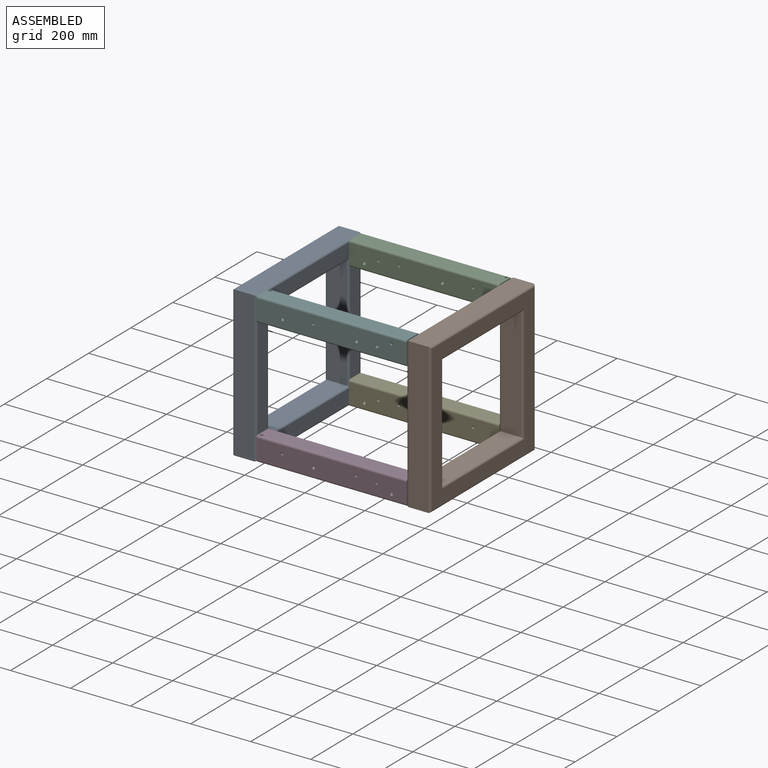
[diagram: assembled view]
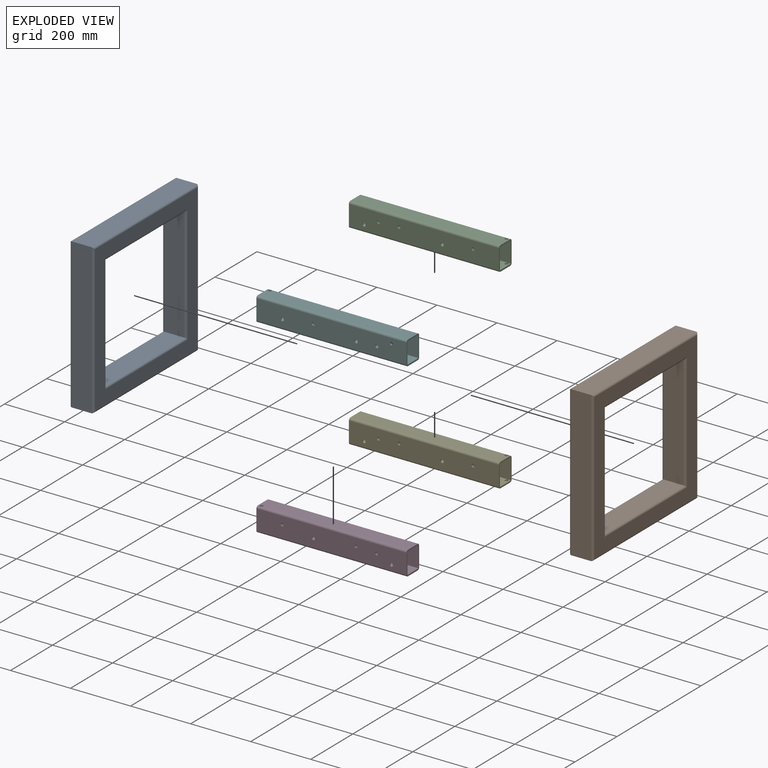
[diagram: exploded view]
GUIDED TOUR — MATED ASSEMBLY WITH SUBASSEMBLIES (Onshape document 570762d4449b630760134de0, AutoMate assembly 570762d4449b630760134de0_2d2cd445d036063de1d0b33d_e6518e5409fb736097e91c08_default)

This assembly has 12 component occurrences arranged in 6 top-level units: 4 individual components plus 2 subassemblies (S0, S1). The tour has two levels: first the top level, where each subassembly is treated as one rigid unit; then each subassembly is toured internally in its own section (nesting deeper than one subassembly level is flattened into its subassembly's section).

Components are labeled P0..P11 across the whole record; subassembly units are labeled S0..S1. A mate is a constraint between two units; its type names the relative motion it leaves free:
  FASTENED — locks the two components together rigidly (no relative motion),
  PLANAR — leaves sliding in the plane through the listed point (normal = the listed direction) and rotation about that normal free.
Axis/direction vectors are unit vectors and 'through' points are millimeter coordinates, both in the assembly's world frame.

TOP-LEVEL MATES (between units; each subassembly's internal mates are listed in its own section)
  1. PLANAR "Planar 14": S1 <-> P5, direction (0.000, 1.000, 0.000) through (397.62, -212.50, 270.20) mm
  2. PLANAR "Planar 6": P10 <-> S0, direction (0.000, 0.000, 1.000) through (108.39, -682.56, 520.20) mm
  3. PLANAR "Planar 3": P6 <-> S0, direction (0.000, 0.000, -1.000) through (108.39, -682.44, 20.20) mm
  4. PLANAR "Planar 10": P5 <-> S0, direction (-1.000, 0.000, 0.000) through (-142.38, -242.50, 480.20) mm
  5. PLANAR "Planar 13": S1 <-> P5, direction (-1.000, 0.000, 0.000) through (357.62, -462.50, 491.00) mm
  6. PLANAR "Planar 2": P6 <-> S0, direction (0.000, -1.000, 0.000) through (107.07, -712.50, 60.21) mm
  7. PLANAR "Planar 5": P10 <-> S0, direction (0.000, -1.000, 0.000) through (-142.38, -712.50, 513.20) mm
  8. PLANAR "Planar 4": P10 <-> S0, direction (-1.000, 0.000, 0.000) through (-142.38, -659.50, 440.20) mm
  9. PLANAR "Planar 12": P5 <-> S0, direction (0.000, 0.000, 1.000) through (106.86, -242.56, 520.20) mm
  10. PLANAR "Planar 1": P6 <-> S0, direction (-1.000, 0.000, 0.000) through (-142.38, -705.50, 20.20) mm
  11. PLANAR "Planar 11": P5 <-> S0, direction (0.000, 1.000, 0.000) through (108.18, -212.50, 480.21) mm
  12. PLANAR "Planar 9": P7 <-> S0, direction (0.000, 1.000, 0.000) through (108.18, -212.50, 60.21) mm
  13. PLANAR "Planar 8": P7 <-> S0, direction (0.000, 0.000, -1.000) through (106.86, -242.56, 20.20) mm
  14. PLANAR "Planar 15": S1 <-> P5, direction (0.000, 0.000, 1.000) through (397.62, -462.50, 520.20) mm
  15. PLANAR "Planar 7": P7 <-> S0, direction (-1.000, 0.000, 0.000) through (-142.38, -242.50, 20.20) mm

TOP-LEVEL ASSEMBLY ORDER
  1. P10 — the base component [order verified]
  2. P5 [order verified]
  3. P7 [order verified]
  4. P6 [order verified]
  5. S1 [order verified]
  6. S0 [order verified]
Order-tag legend:
  [order verified] — this step's position reverses a verified removal order: the component was checked to insert without passing through the ones already placed.

Of the 12 component occurrences, 12 carry the full construction recipe — the FeatureScript program that regenerates the part's solid from scratch; the rest are supplied as boundary geometry only. Each toured unit is shown spotlighted twice — assembled, then exploded with a leader line back to its socket (green = recipe-attached component, orange = geometry-only, blue = subassembly unit; the rest desaturated gray).
NOTE — this tour is split across 2 documents so each fits a 32k-token context. This is document 1: the component sections continue in the remaining 1 document, each repeating the header above.
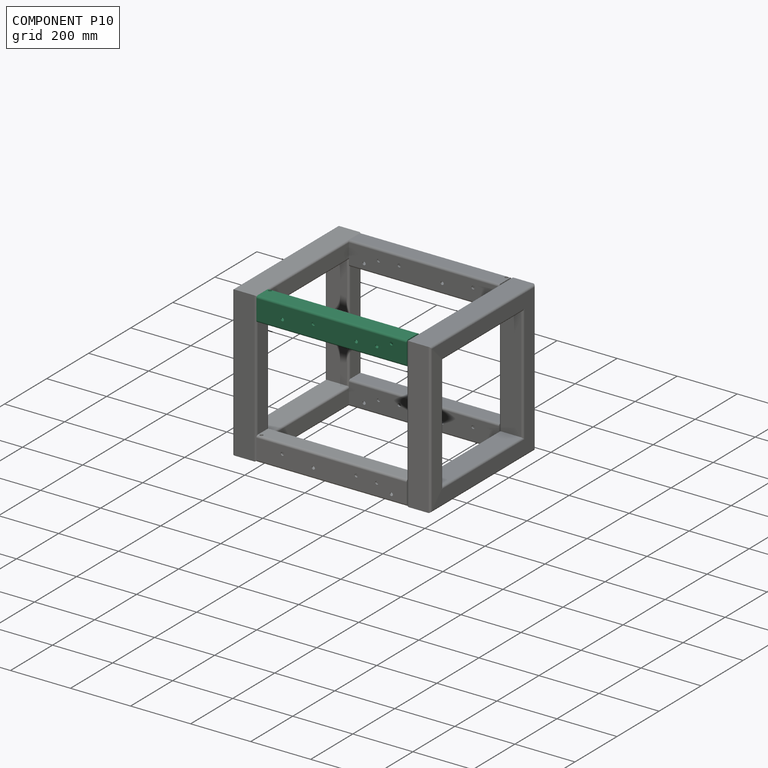
[diagram: component P10 — assembled]
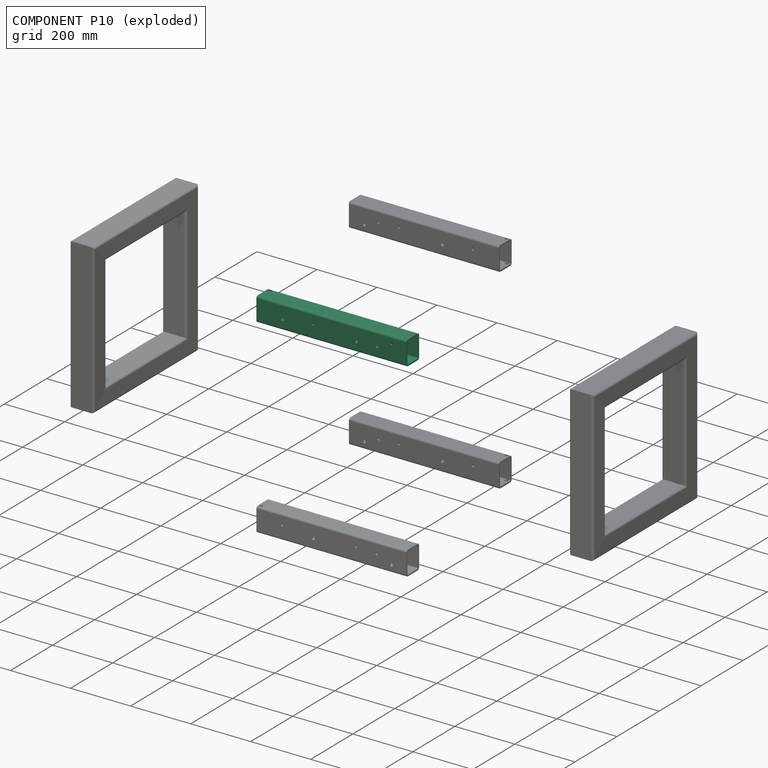
[diagram: component P10 — exploded]
COMPONENT P10 — same part as P5 (CADFS 00210873); its construction recipe is shown at P5.
Held by: PLANAR mate "Planar 6" to P0; PLANAR mate "Planar 5" to P0; PLANAR mate "Planar 4" to P0.
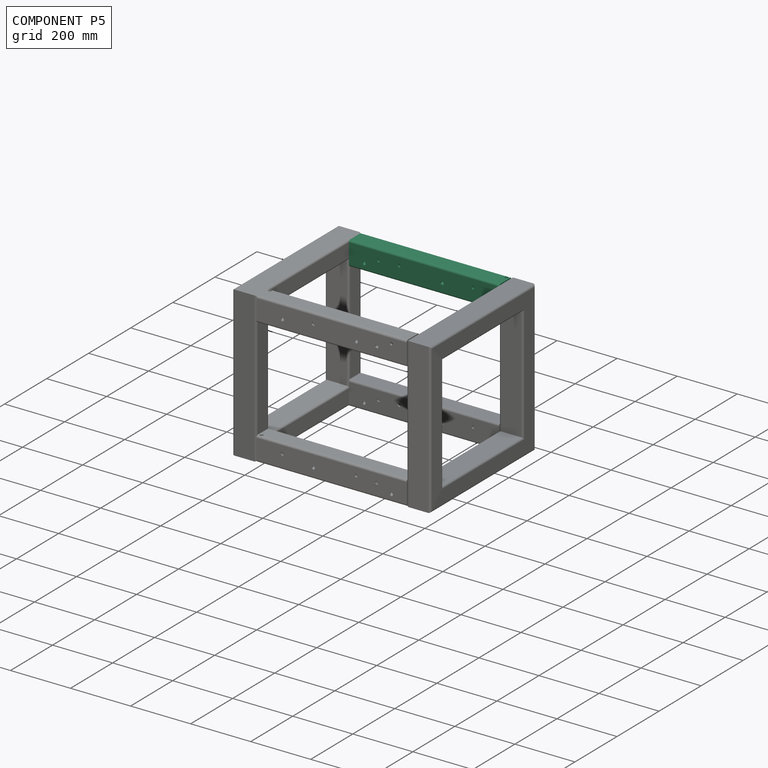
[diagram: component P5 — assembled]
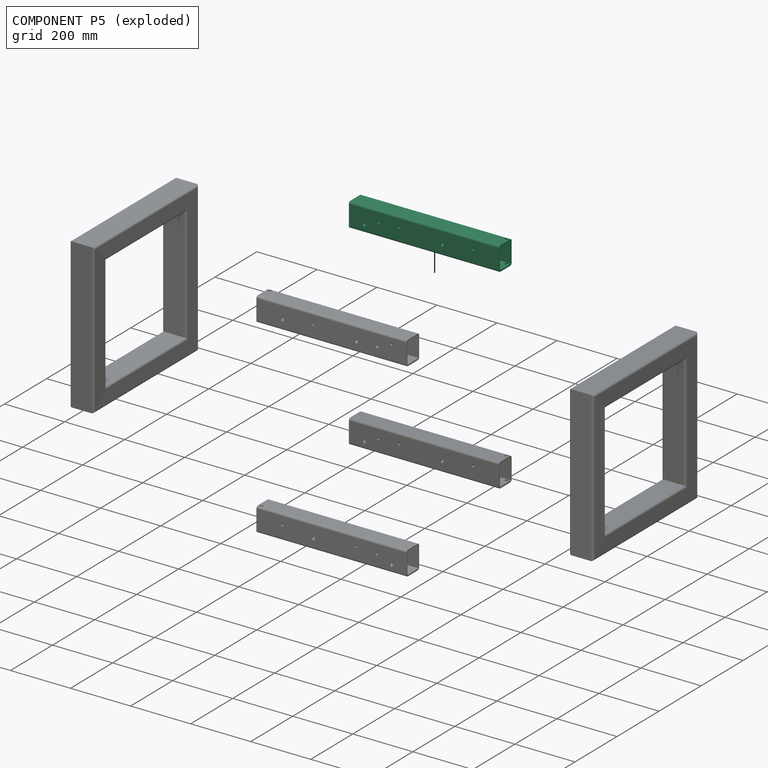
[diagram: component P5 — exploded]
COMPONENT P5 — recipe-attached (CADFS 00210873, mesh-verified: the recipe's output STEP matches this component's geometry to below the mesh-comparison resolution (tessellation chordal tolerance ~0.765 mm)).
Held by: PLANAR mate "Planar 14" to P1; PLANAR mate "Planar 10" to P0; PLANAR mate "Planar 13" to P1; PLANAR mate "Planar 12" to P0; PLANAR mate "Planar 11" to P0; PLANAR mate "Planar 15" to P1.
Construction recipe (FeatureScript — the CAD program that rebuilds this solid; sketch coordinates are in the units given by the * unit suffixes, e.g. mm):

FeatureScript 1511;
import(path : "onshape/std/geometry.fs", version : "1511.0");
import(path : "onshape/std/common.fs", version : "1511.0");
const mm = millimeter;
const VERTEX = EntityType.VERTEX;
const EDGE = EntityType.EDGE;
const FACE = EntityType.FACE;
const BODY = EntityType.BODY;
function v(x, y){return vector(x, y);}
function OD(order){return orderDisambiguation(order);}
function OSD(set){return originalSetDisambiguation(set);}
function TD(topology){return topologyDisambiguation(topology);}
function TDD(query){return trueDependencyDisambiguation(query);}
function sQuery(a, b, c) {return sketchEntityQuery(a, b, c);}

annotation { "Feature Type Name" : "Feature", "Feature Type Description" : "" }
export const myFeature = defineFeature(function(context is Context, id is Id, definition is map)
    precondition{}
    {
        {
            var Q0;
            Q0=qCreatedBy(makeId("Front.planeOp"),FACE);
            var sketch = newSketch(context, id + "F0", { "sketchPlane" : qUnion([Q0])});
            skLineSegment(sketch, "E0.bottom", {"start": v(33, 30) * mm, "end": v(-33, 30) * mm});
            skLineSegment(sketch, "E0.top", {"start": v(33, -30) * mm, "end": v(-33, -30) * mm});
            skLineSegment(sketch, "E0.left", {"start": v(40, 23) * mm, "end": v(40, -23) * mm});
            skLineSegment(sketch, "E0.right", {"start": v(-40, 23) * mm, "end": v(-40, -23) * mm});
            skPoint(sketch, "E0.middle", {"position": v(0, 0) * mm});
            skLineSegment(sketch, "E1.bottom", {"start": v(33, 25) * mm, "end": v(-33, 25) * mm});
            skLineSegment(sketch, "E1.top", {"start": v(33, -25) * mm, "end": v(-33, -25) * mm});
            skLineSegment(sketch, "E1.left", {"start": v(35, 23) * mm, "end": v(35, -23) * mm});
            skLineSegment(sketch, "E1.right", {"start": v(-35, 23) * mm, "end": v(-35, -23) * mm});
            skPoint(sketch, "E2.visualSharp", {"position": v(-40, 30) * mm});
            skArc(sketch, "E2.filletArc", {"start": v(-33, 30) * mm, "mid": v(-37.95, 27.95) * mm, "end": v(-40, 23) * mm});
            skPoint(sketch, "E3.visualSharp", {"position": v(-40, -30) * mm});
            skArc(sketch, "E3.filletArc", {"start": v(-40, -23) * mm, "mid": v(-37.95, -27.95) * mm, "end": v(-33, -30) * mm});
            skPoint(sketch, "E4.visualSharp", {"position": v(40, -30) * mm});
            skArc(sketch, "E4.filletArc", {"start": v(33, -30) * mm, "mid": v(37.95, -27.95) * mm, "end": v(40, -23) * mm});
            skPoint(sketch, "E5.visualSharp", {"position": v(40, 30) * mm});
            skArc(sketch, "E5.filletArc", {"start": v(40, 23) * mm, "mid": v(37.95, 27.95) * mm, "end": v(33, 30) * mm});
            skPoint(sketch, "E6.visualSharp", {"position": v(-35, -25) * mm});
            skArc(sketch, "E6.filletArc", {"start": v(-35, -23) * mm, "mid": v(-34.41, -24.41) * mm, "end": v(-33, -25) * mm});
            skPoint(sketch, "E7.visualSharp", {"position": v(35, 25) * mm});
            skArc(sketch, "E7.filletArc", {"start": v(35, 23) * mm, "mid": v(34.41, 24.41) * mm, "end": v(33, 25) * mm});
            skPoint(sketch, "E8.visualSharp", {"position": v(35, -25) * mm});
            skArc(sketch, "E8.filletArc", {"start": v(33, -25) * mm, "mid": v(34.41, -24.41) * mm, "end": v(35, -23) * mm});
            skPoint(sketch, "E9.visualSharp", {"position": v(-35, 25) * mm});
            skArc(sketch, "E9.filletArc", {"start": v(-33, 25) * mm, "mid": v(-34.41, 24.41) * mm, "end": v(-35, 23) * mm});
            skSolve(sketch);
        }
        {
            var Q0;
            Q0=makeQuery(id+"F0.imprint","IMPRINT",FACE,{"disambiguationData":[TD([[makeQuery(id+"F0.imprint","IMPRINT",EDGE,{"derivedFrom":sQuery(id+"F0.wireOp",EDGE,"E0.bottom")}),1.0]])]});
            extrude(context, id + "F1", {"entities" : qUnion([Q0]), "endBound" : BoundingType.SYMMETRIC, "depth" : 500 * mm});
        }
        {
            var Q0;
            Q0=makeQuery(id+"F1.opExtrude","SWEPT_FACE",FACE,{"disambiguationData":[OSD([sQuery(id+"F0.wireOp",EDGE,"E0.right")])]});
            var sketch = newSketch(context, id + "F2", { "sketchPlane" : qUnion([Q0])});
            skLineSegment(sketch, "E10.0", {"start": v(-190, -30) * mm, "end": v(-250, -30) * mm});
            skPoint(sketch, "E11.0", {"position": v(-250, 30) * mm});
            skLineSegment(sketch, "E12", {"start": v(-250, 30) * mm, "end": v(-250, -30) * mm});
            skLineSegment(sketch, "E13", {"start": v(-250, 30) * mm, "end": v(-190, -30) * mm});
            skPoint(sketch, "E14.orphan", {"position": v(250, -30) * mm});
            skLineSegment(sketch, "E15.MirrorCS", {"start": v(250, 30) * mm, "end": v(250, -30) * mm});
            skLineSegment(sketch, "E16.MirrorCS", {"start": v(250, 30) * mm, "end": v(190, -30) * mm});
            skLineSegment(sketch, "E17.MirrorCS", {"start": v(190, -30) * mm, "end": v(250, -30) * mm});
            skSolve(sketch);
        }
        {
            var Q0;
            Q0=makeQuery(id+"F1.opExtrude","SWEPT_FACE",FACE,{"disambiguationData":[OSD([sQuery(id+"F0.wireOp",EDGE,"E0.bottom")])]});
            var sketch = newSketch(context, id + "F3", { "sketchPlane" : qUnion([Q0])});
            skPoint(sketch, "E18", {"position": v(-16.69, 199.33) * mm});
            skPoint(sketch, "E19", {"position": v(4.77, 151.06) * mm});
            skPoint(sketch, "E20", {"position": v(8.34, 82.53) * mm});
            skPoint(sketch, "E21", {"position": v(-6.56, -60.49) * mm});
            skPoint(sketch, "E22", {"position": v(7.75, -163.58) * mm});
            skSolve(sketch);
        }
        {
            var Q0;
            Q0=sQuery(id+"F3.wireOp",VERTEX,"E22");
            var Q1;
            Q1=sQuery(id+"F3.wireOp",VERTEX,"E21");
            var Q2;
            Q2=sQuery(id+"F3.wireOp",VERTEX,"E20");
            var Q3;
            Q3=sQuery(id+"F3.wireOp",VERTEX,"E19");
            var Q4;
            Q4=sQuery(id+"F3.wireOp",VERTEX,"E18");
            var Q5;
            Q5=makeQuery(id+"F1.opExtrude","SWEPT_BODY",BODY,{"disambiguationData":[OSD([sQuery(id+"F0.wireOp",EDGE,"E0.bottom"),sQuery(id+"F0.wireOp",EDGE,"E0.top"),sQuery(id+"F0.wireOp",EDGE,"E0.left"),sQuery(id+"F0.wireOp",EDGE,"E0.right"),sQuery(id+"F0.wireOp",EDGE,"E1.bottom"),sQuery(id+"F0.wireOp",EDGE,"E1.top"),sQuery(id+"F0.wireOp",EDGE,"E1.left"),sQuery(id+"F0.wireOp",EDGE,"E1.right"),sQuery(id+"F0.wireOp",EDGE,"E2.filletArc"),sQuery(id+"F0.wireOp",EDGE,"E3.filletArc"),sQuery(id+"F0.wireOp",EDGE,"E4.filletArc"),sQuery(id+"F0.wireOp",EDGE,"E5.filletArc"),sQuery(id+"F0.wireOp",EDGE,"E6.filletArc"),sQuery(id+"F0.wireOp",EDGE,"E7.filletArc"),sQuery(id+"F0.wireOp",EDGE,"E8.filletArc"),sQuery(id+"F0.wireOp",EDGE,"E9.filletArc")])]});
            hole(context, id + "F4", {"style" : HoleStyle.SIMPLE, "endStyle" : HoleEndStyle.THROUGH, "standardTappedOrClearance" : lookupTablePath({ "standard" : "ISO", "engagement" : "75%", "pitch" : "1.5 mm", "size" : "M12", "type" : "Tapped" }), "standardBlindInLast" : lookupTablePath({ "standard" : "ISO", "engagement" : "75%", "pitch" : "1.5 mm", "size" : "M12", "type" : "Tapped" }), "holeDiameter" : 10.5 * mm, "locations" : qUnion([Q0, Q1, Q2, Q3, Q4]), "scope" : qUnion([Q5]), "isTappedThrough" : true, "majorDiameter" : 12 * mm, "showTappedDepth" : true});
        }
        {
            var Q0;
            Q0=makeQuery(id+"F1.opExtrude","SWEPT_FACE",FACE,{"disambiguationData":[OSD([sQuery(id+"F0.wireOp",EDGE,"E0.left")])]});
            var sketch = newSketch(context, id + "F5", { "sketchPlane" : qUnion([Q0])});
            skPoint(sketch, "E23", {"position": v(-240, -20) * mm});
            skSolve(sketch);
        }
        {
            var Q0;
            Q0=sQuery(id+"F5.wireOp",VERTEX,"E23");
            var Q1;
            Q1=makeQuery(id+"F1.opExtrude","SWEPT_BODY",BODY,{"disambiguationData":[OSD([sQuery(id+"F0.wireOp",EDGE,"E0.bottom"),sQuery(id+"F0.wireOp",EDGE,"E0.top"),sQuery(id+"F0.wireOp",EDGE,"E0.left"),sQuery(id+"F0.wireOp",EDGE,"E0.right"),sQuery(id+"F0.wireOp",EDGE,"E1.bottom"),sQuery(id+"F0.wireOp",EDGE,"E1.top"),sQuery(id+"F0.wireOp",EDGE,"E1.left"),sQuery(id+"F0.wireOp",EDGE,"E1.right"),sQuery(id+"F0.wireOp",EDGE,"E2.filletArc"),sQuery(id+"F0.wireOp",EDGE,"E3.filletArc"),sQuery(id+"F0.wireOp",EDGE,"E4.filletArc"),sQuery(id+"F0.wireOp",EDGE,"E5.filletArc"),sQuery(id+"F0.wireOp",EDGE,"E6.filletArc"),sQuery(id+"F0.wireOp",EDGE,"E7.filletArc"),sQuery(id+"F0.wireOp",EDGE,"E8.filletArc"),sQuery(id+"F0.wireOp",EDGE,"E9.filletArc")])]});
            hole(context, id + "F6", {"style" : HoleStyle.SIMPLE, "endStyle" : HoleEndStyle.THROUGH, "standardTappedOrClearance" : lookupTablePath({ "standard" : "ISO", "engagement" : "75%", "pitch" : "1.5 mm", "size" : "M12", "type" : "Tapped" }), "standardBlindInLast" : lookupTablePath({ "standard" : "ISO", "engagement" : "75%", "pitch" : "1.5 mm", "size" : "M12", "type" : "Tapped" }), "holeDiameter" : 10.5 * mm, "locations" : qUnion([Q0]), "scope" : qUnion([Q1]), "isTappedThrough" : true, "majorDiameter" : 12 * mm, "showTappedDepth" : true});
        }
    });
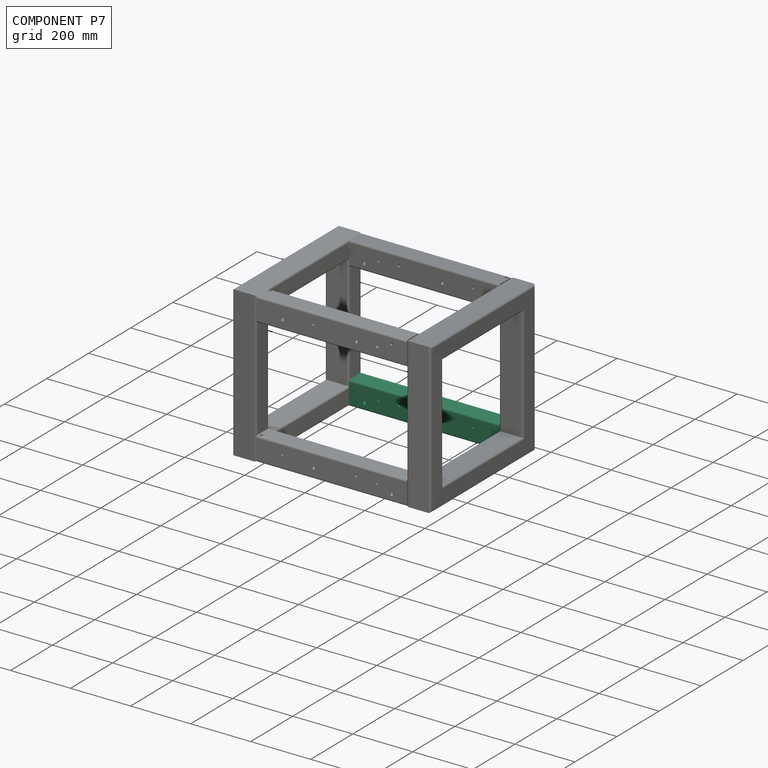
[diagram: component P7 — assembled]
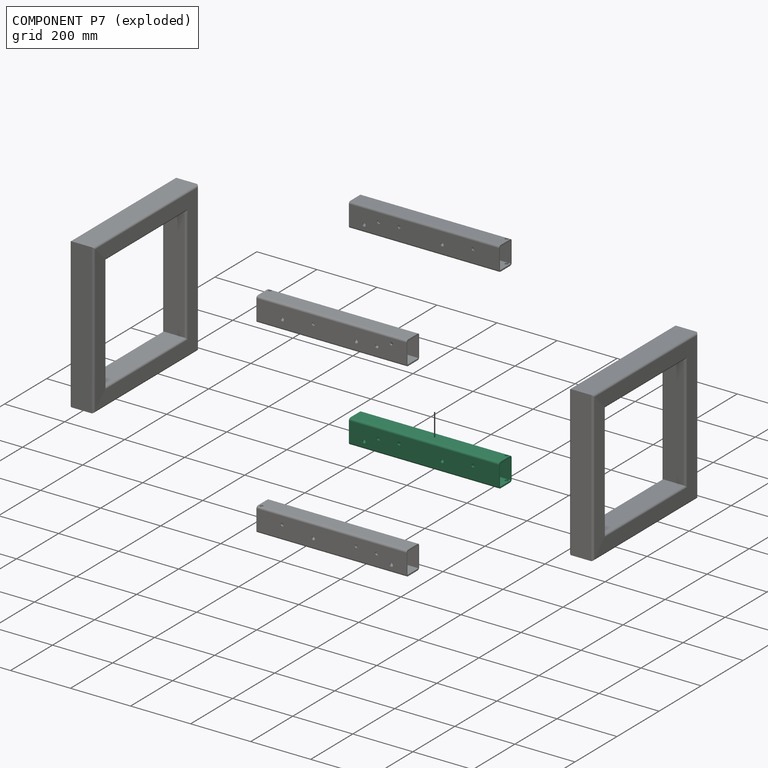
[diagram: component P7 — exploded]
COMPONENT P7 — same part as P5 (CADFS 00210873); its construction recipe is shown at P5.
Held by: PLANAR mate "Planar 9" to P0; PLANAR mate "Planar 8" to P0; PLANAR mate "Planar 7" to P0.
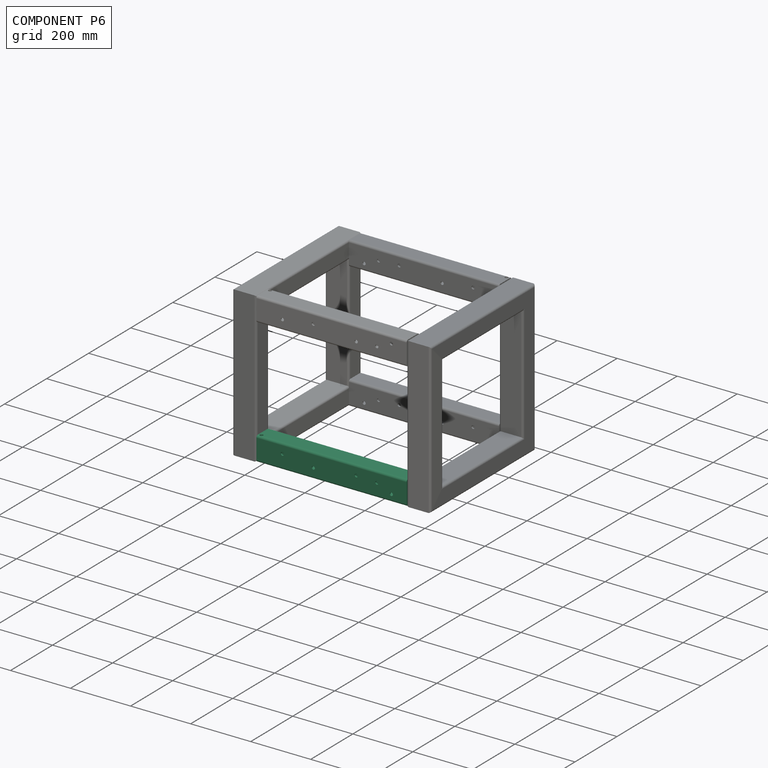
[diagram: component P6 — assembled]
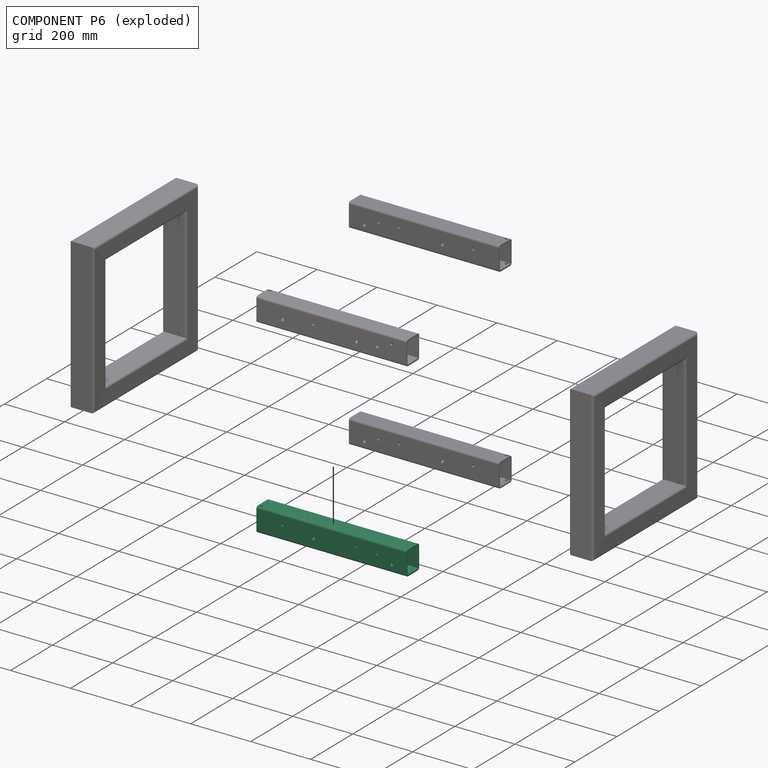
[diagram: component P6 — exploded]
COMPONENT P6 — same part as P5 (CADFS 00210873); its construction recipe is shown at P5.
Held by: PLANAR mate "Planar 3" to P0; PLANAR mate "Planar 2" to P0; PLANAR mate "Planar 1" to P0.
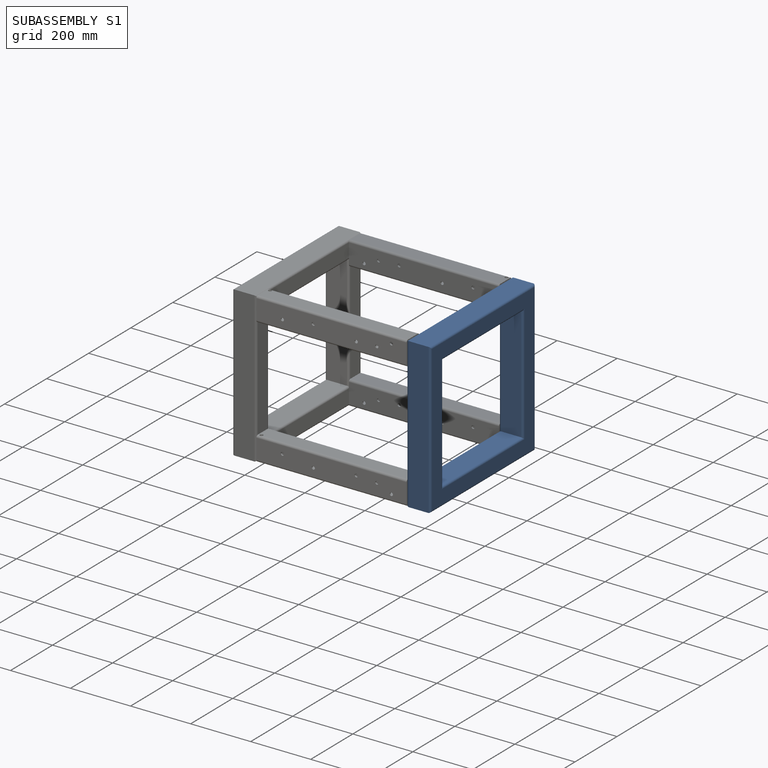
[diagram: subassembly S1 — assembled]
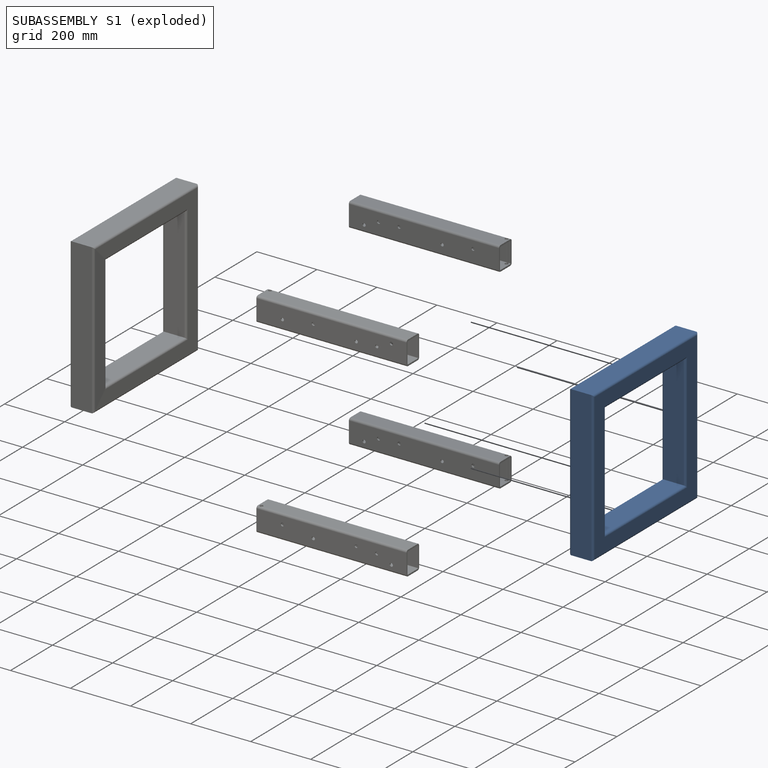
[diagram: subassembly S1 — exploded]
SUBASSEMBLY S1 — 4 components (P1, P3, P8, P9), of which 4 recipe-attached; toured below.
Held by: PLANAR mate "Planar 14" to P5; PLANAR mate "Planar 13" to P5; PLANAR mate "Planar 15" to P5.
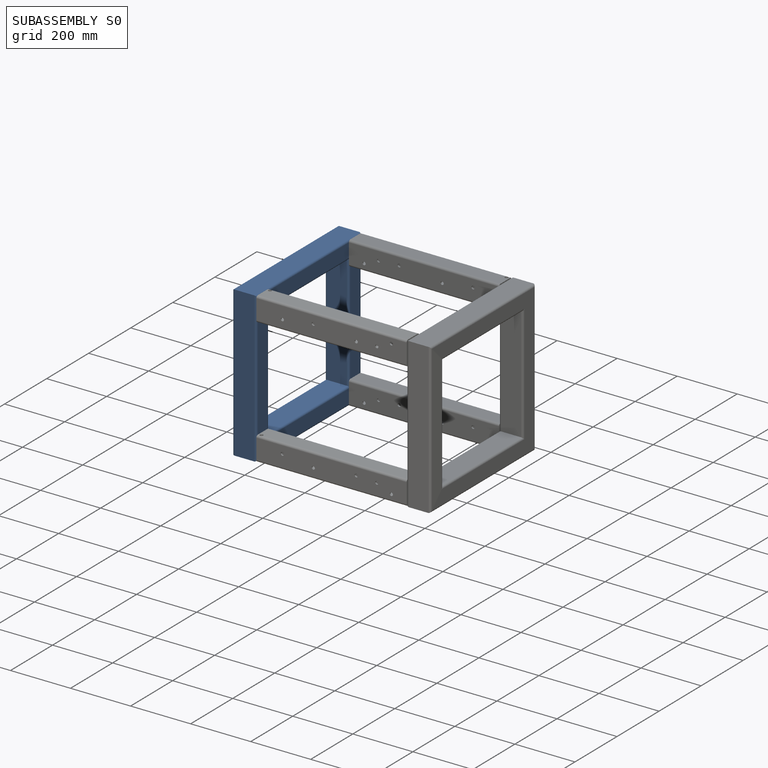
[diagram: subassembly S0 — assembled]
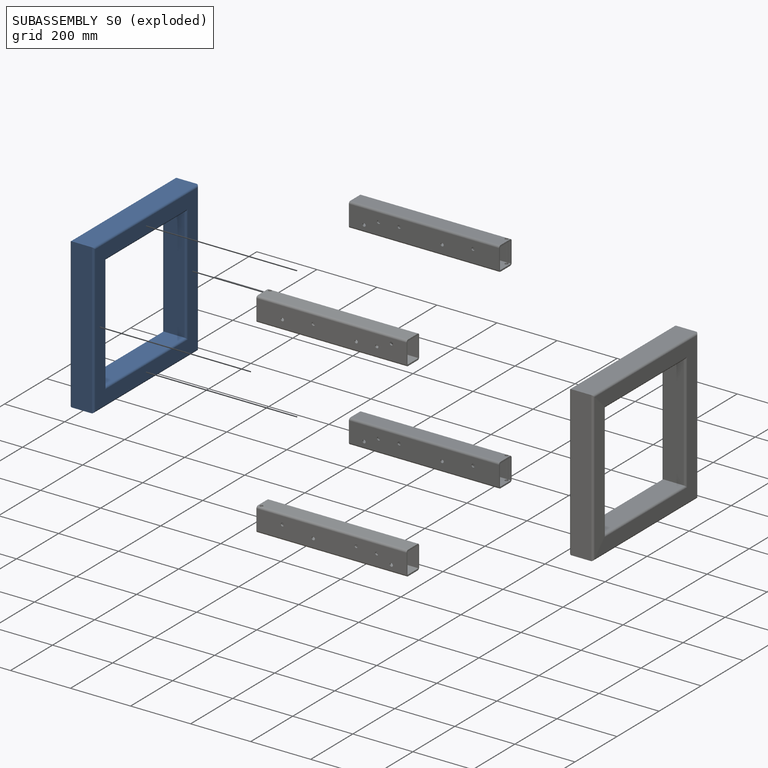
[diagram: subassembly S0 — exploded]
SUBASSEMBLY S0 — 4 components (P0, P2, P4, P11), of which 4 recipe-attached; toured below.
Held by: PLANAR mate "Planar 6" to P10; PLANAR mate "Planar 3" to P6; PLANAR mate "Planar 10" to P5; PLANAR mate "Planar 2" to P6; PLANAR mate "Planar 5" to P10; PLANAR mate "Planar 4" to P10; PLANAR mate "Planar 12" to P5; PLANAR mate "Planar 1" to P6; PLANAR mate "Planar 11" to P5; PLANAR mate "Planar 9" to P7; PLANAR mate "Planar 8" to P7; PLANAR mate "Planar 7" to P7.
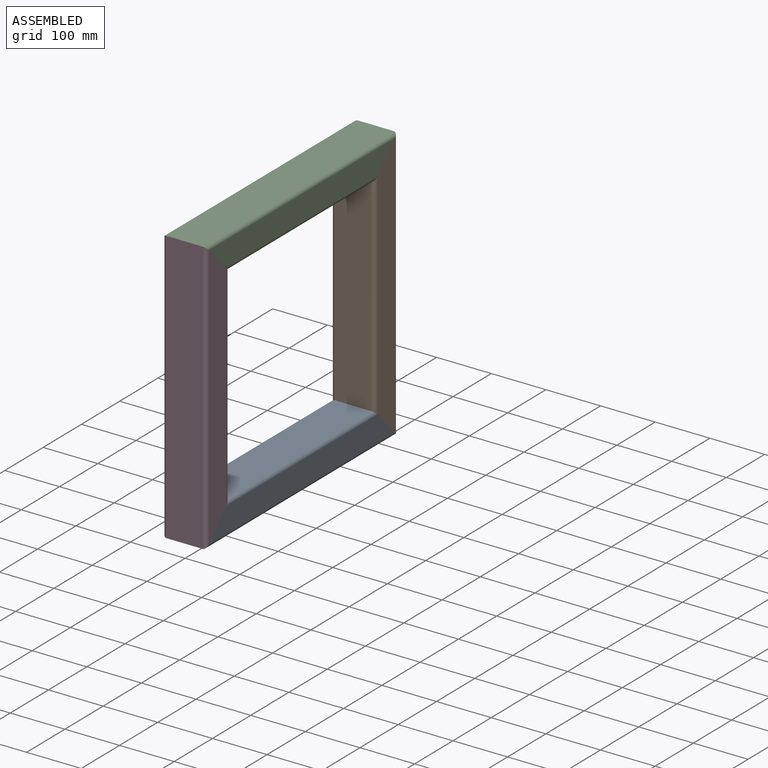
[diagram: subassembly S0 — assembled view]
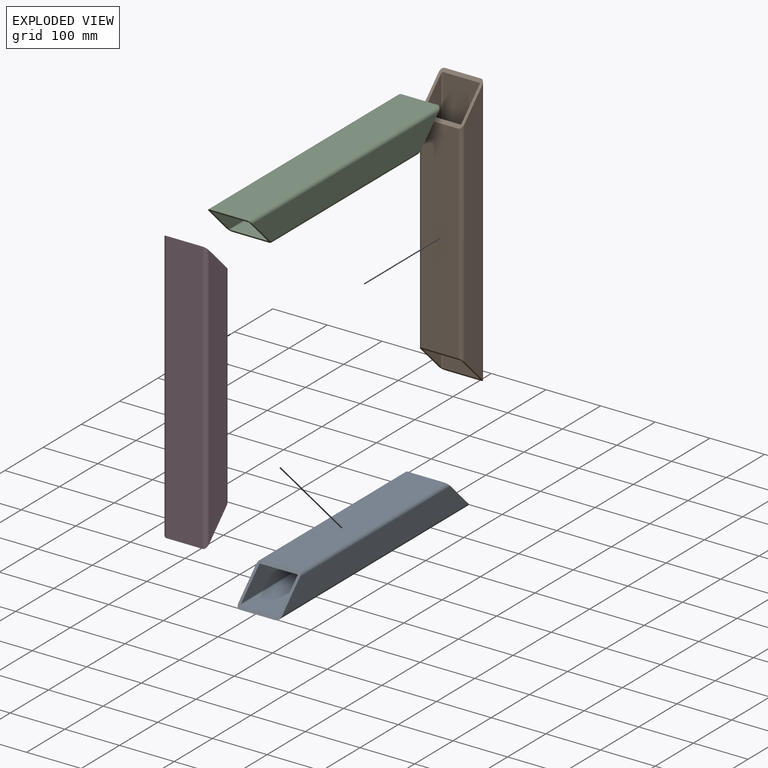
[diagram: subassembly S0 — exploded view]
SUBASSEMBLY S0 TOUR — 4 components, shown here in isolation at its own camera.

INTERNAL MATES
  1. PLANAR "Planar 2": P11 <-> P0, direction (-1.000, 0.000, 0.000) through (-222.38, -682.50, 50.20) mm
  2. PLANAR "Planar 6": P2 <-> P4, direction (-1.000, 0.000, 0.000) through (-222.38, -241.70, 270.20) mm
  3. FASTENED "Fastened 2": P4 <-> P11, direction (-1.000, 0.000, 0.000) through (-182.38, -712.50, 520.20) mm
  4. FASTENED "Fastened 1": P11 <-> P0, direction (-1.000, 0.000, 0.000) through (-182.38, -712.50, 20.20) mm
  5. PLANAR "Planar 5": P2 <-> P4, direction (0.000, -0.707, 0.707) through (-182.38, -242.50, 490.20) mm
  6. FASTENED "Fastened 3": P2 <-> P0, direction (1.000, 0.000, 0.000) through (-182.38, -212.50, 20.20) mm
  7. PLANAR "Planar 3": P4 <-> P11, direction (0.000, -0.707, -0.707) through (-182.38, -682.50, 490.20) mm
  8. PLANAR "Planar 1": P0 <-> P11, direction (0.000, -0.707, 0.707) through (-182.38, -682.50, 50.20) mm
  9. PLANAR "Planar 4": P11 <-> P4, direction (1.000, 0.000, 0.000) through (-142.38, -682.50, 490.20) mm
  10. FASTENED "Fastened 3": P2 <-> P0, direction (1.000, 0.000, 0.000) through (-182.38, -212.50, 20.20) mm
  11. PLANAR "Planar 1": P0 <-> P11, direction (0.000, -0.707, 0.707) through (-182.38, -682.50, 50.20) mm
  12. PLANAR "Planar 6": P2 <-> P4, direction (-1.000, 0.000, 0.000) through (-222.38, -241.70, 270.20) mm
  13. PLANAR "Planar 4": P11 <-> P4, direction (1.000, 0.000, 0.000) through (-142.38, -682.50, 490.20) mm
  14. PLANAR "Planar 3": P4 <-> P11, direction (0.000, -0.707, -0.707) through (-182.38, -682.50, 490.20) mm
  15. PLANAR "Planar 5": P2 <-> P4, direction (0.000, -0.707, 0.707) through (-182.38, -242.50, 490.20) mm
  16. PLANAR "Planar 2": P11 <-> P0, direction (-1.000, 0.000, 0.000) through (-222.38, -682.50, 50.20) mm
  17. FASTENED "Fastened 1": P11 <-> P0, direction (-1.000, 0.000, 0.000) through (-182.38, -712.50, 20.20) mm
  18. FASTENED "Fastened 2": P4 <-> P11, direction (-1.000, 0.000, 0.000) through (-182.38, -712.50, 520.20) mm

ASSEMBLY ORDER (within the subassembly)
  1. P11 — the base component [order verified]
  2. P4 [order verified]
  3. P0 [order verified]
  4. P2 [order verified]
(P2 verified with a relaxed clearance tolerance: the source model stores slight part interference there.)
Order-tag legend:
  [order verified] — this step's position reverses a verified removal order: the component was checked to insert without passing through the ones already placed.
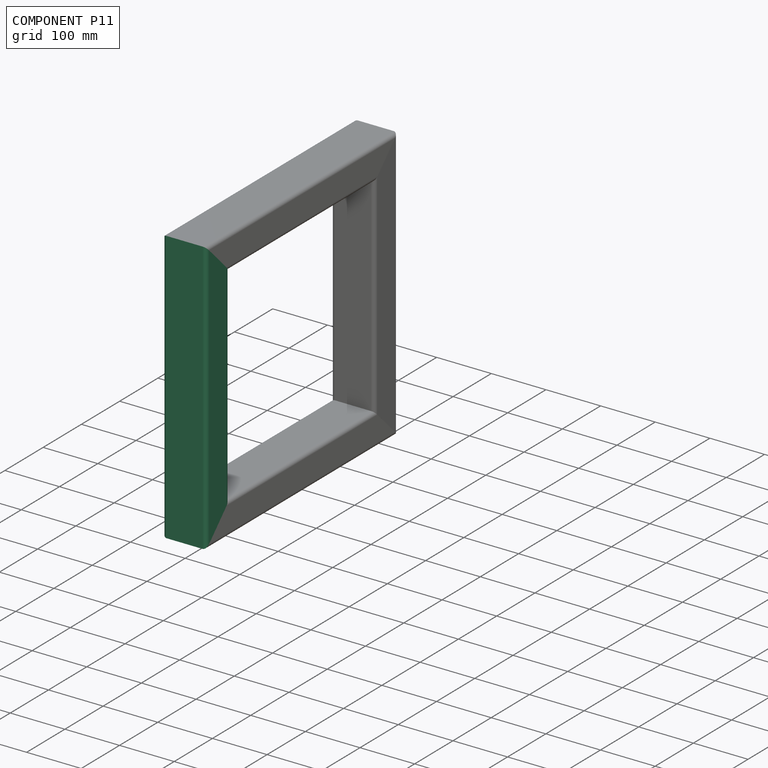
[diagram: component P11 — assembled]
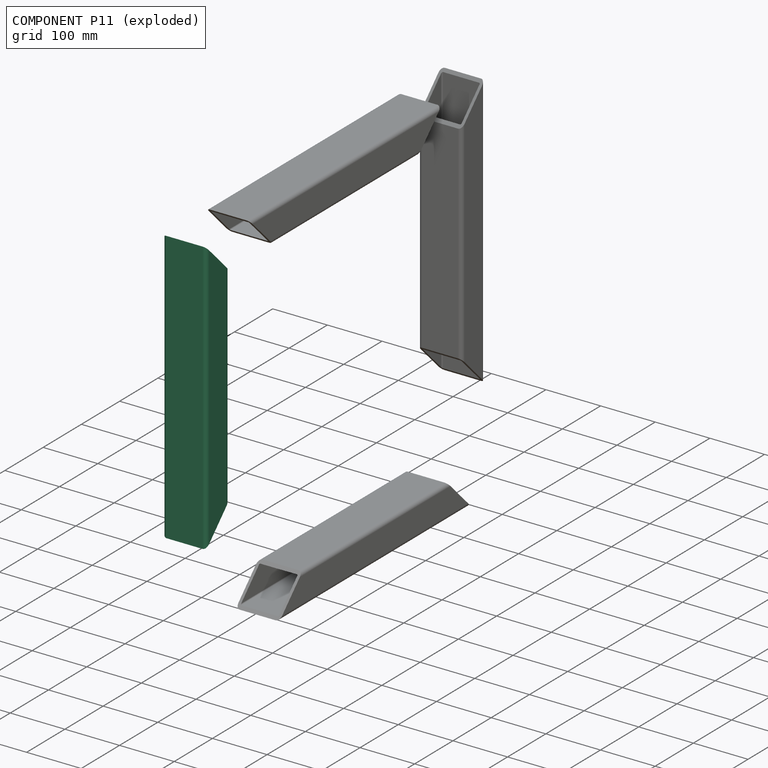
[diagram: component P11 — exploded]
COMPONENT P11 — same part as P0 (CADFS 00210872); its construction recipe is shown at P0.
Held by: PLANAR mate "Planar 2" to P0; FASTENED mate "Fastened 2" to P4; FASTENED mate "Fastened 1" to P0; PLANAR mate "Planar 3" to P4; PLANAR mate "Planar 1" to P0; PLANAR mate "Planar 4" to P4; PLANAR mate "Planar 1" to P0; PLANAR mate "Planar 4" to P4; PLANAR mate "Planar 3" to P4; PLANAR mate "Planar 2" to P0; FASTENED mate "Fastened 1" to P0; FASTENED mate "Fastened 2" to P4.
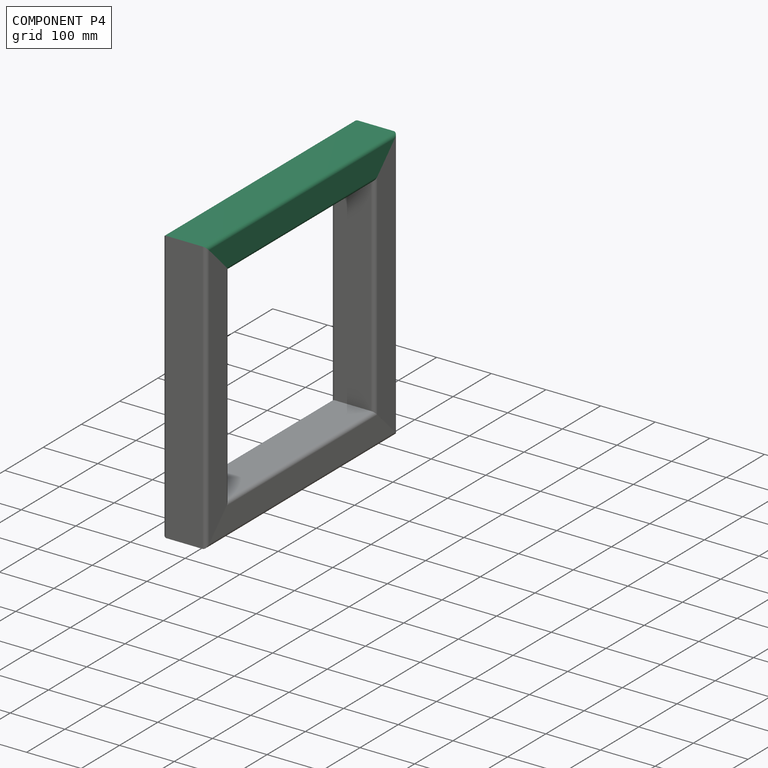
[diagram: component P4 — assembled]
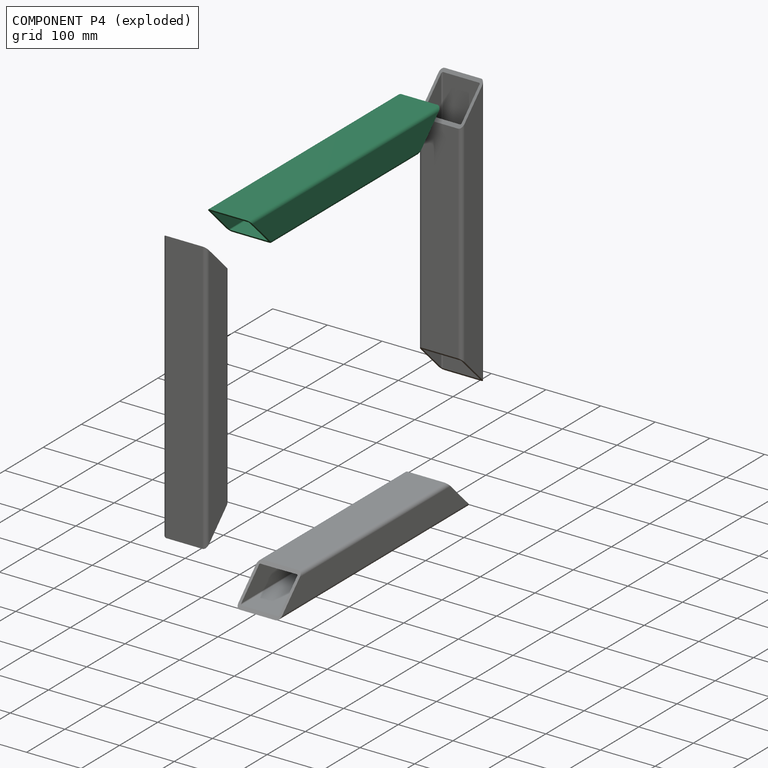
[diagram: component P4 — exploded]
COMPONENT P4 — same part as P0 (CADFS 00210872); its construction recipe is shown at P0.
Held by: PLANAR mate "Planar 6" to P2; FASTENED mate "Fastened 2" to P11; PLANAR mate "Planar 5" to P2; PLANAR mate "Planar 3" to P11; PLANAR mate "Planar 4" to P11; PLANAR mate "Planar 6" to P2; PLANAR mate "Planar 4" to P11; PLANAR mate "Planar 3" to P11; PLANAR mate "Planar 5" to P2; FASTENED mate "Fastened 2" to P11.
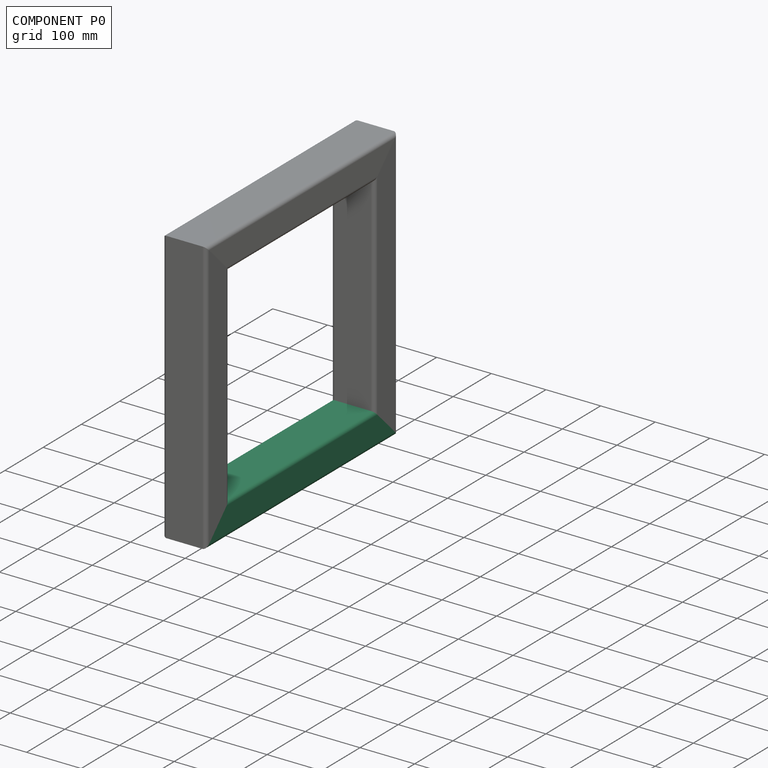
[diagram: component P0 — assembled]
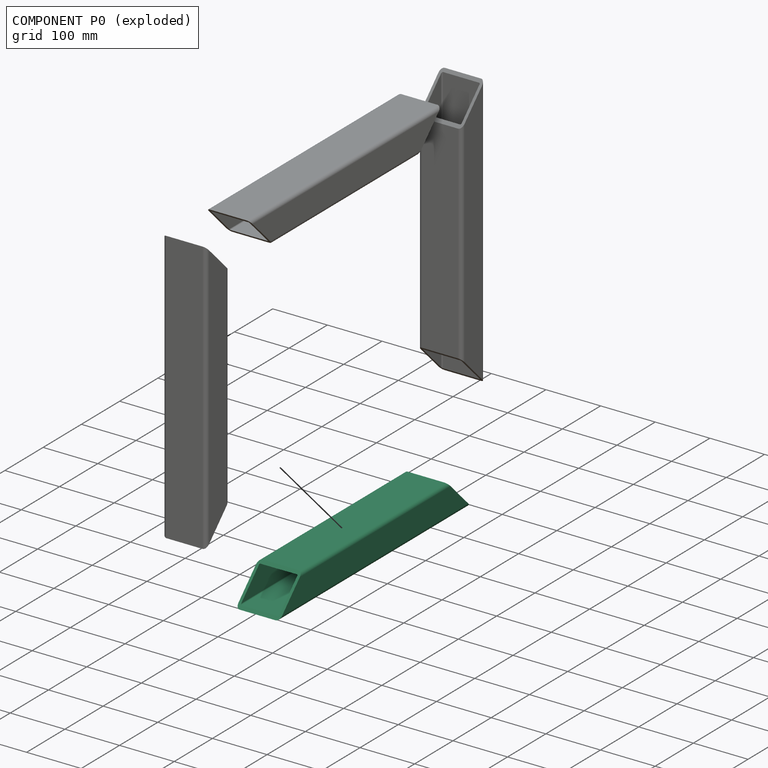
[diagram: component P0 — exploded]
COMPONENT P0 — recipe-attached (CADFS 00210872, mesh-verified: the recipe's output STEP matches this component's geometry to below the mesh-comparison resolution (tessellation chordal tolerance ~0.765 mm)).
Held by: PLANAR mate "Planar 2" to P11; FASTENED mate "Fastened 1" to P11; FASTENED mate "Fastened 3" to P2; PLANAR mate "Planar 1" to P11; FASTENED mate "Fastened 3" to P2; PLANAR mate "Planar 1" to P11; PLANAR mate "Planar 2" to P11; FASTENED mate "Fastened 1" to P11.
Construction recipe (FeatureScript — the CAD program that rebuilds this solid; sketch coordinates are in the units given by the * unit suffixes, e.g. mm):

FeatureScript 1511;
import(path : "onshape/std/geometry.fs", version : "1511.0");
import(path : "onshape/std/common.fs", version : "1511.0");
const mm = millimeter;
const VERTEX = EntityType.VERTEX;
const EDGE = EntityType.EDGE;
const FACE = EntityType.FACE;
const BODY = EntityType.BODY;
function v(x, y){return vector(x, y);}
function OD(order){return orderDisambiguation(order);}
function OSD(set){return originalSetDisambiguation(set);}
function TD(topology){return topologyDisambiguation(topology);}
function TDD(query){return trueDependencyDisambiguation(query);}
function sQuery(a, b, c) {return sketchEntityQuery(a, b, c);}

annotation { "Feature Type Name" : "Feature", "Feature Type Description" : "" }
export const myFeature = defineFeature(function(context is Context, id is Id, definition is map)
    precondition{}
    {
        {
            var Q0;
            Q0=qCreatedBy(makeId("Front.planeOp"),FACE);
            var sketch = newSketch(context, id + "F0", { "sketchPlane" : qUnion([Q0])});
            skLineSegment(sketch, "E0.bottom", {"start": v(33, 30) * mm, "end": v(-33, 30) * mm});
            skLineSegment(sketch, "E0.top", {"start": v(33, -30) * mm, "end": v(-33, -30) * mm});
            skLineSegment(sketch, "E0.left", {"start": v(40, 23) * mm, "end": v(40, -23) * mm});
            skLineSegment(sketch, "E0.right", {"start": v(-40, 23) * mm, "end": v(-40, -23) * mm});
            skPoint(sketch, "E0.middle", {"position": v(0, 0) * mm});
            skLineSegment(sketch, "E1.bottom", {"start": v(33, 25) * mm, "end": v(-33, 25) * mm});
            skLineSegment(sketch, "E1.top", {"start": v(33, -25) * mm, "end": v(-33, -25) * mm});
            skLineSegment(sketch, "E1.left", {"start": v(35, 23) * mm, "end": v(35, -23) * mm});
            skLineSegment(sketch, "E1.right", {"start": v(-35, 23) * mm, "end": v(-35, -23) * mm});
            skPoint(sketch, "E2.visualSharp", {"position": v(-40, 30) * mm});
            skArc(sketch, "E2.filletArc", {"start": v(-33, 30) * mm, "mid": v(-37.95, 27.95) * mm, "end": v(-40, 23) * mm});
            skPoint(sketch, "E3.visualSharp", {"position": v(-40, -30) * mm});
            skArc(sketch, "E3.filletArc", {"start": v(-40, -23) * mm, "mid": v(-37.95, -27.95) * mm, "end": v(-33, -30) * mm});
            skPoint(sketch, "E4.visualSharp", {"position": v(40, -30) * mm});
            skArc(sketch, "E4.filletArc", {"start": v(33, -30) * mm, "mid": v(37.95, -27.95) * mm, "end": v(40, -23) * mm});
            skPoint(sketch, "E5.visualSharp", {"position": v(40, 30) * mm});
            skArc(sketch, "E5.filletArc", {"start": v(40, 23) * mm, "mid": v(37.95, 27.95) * mm, "end": v(33, 30) * mm});
            skPoint(sketch, "E6.visualSharp", {"position": v(-35, -25) * mm});
            skArc(sketch, "E6.filletArc", {"start": v(-35, -23) * mm, "mid": v(-34.41, -24.41) * mm, "end": v(-33, -25) * mm});
            skPoint(sketch, "E7.visualSharp", {"position": v(35, 25) * mm});
            skArc(sketch, "E7.filletArc", {"start": v(35, 23) * mm, "mid": v(34.41, 24.41) * mm, "end": v(33, 25) * mm});
            skPoint(sketch, "E8.visualSharp", {"position": v(35, -25) * mm});
            skArc(sketch, "E8.filletArc", {"start": v(33, -25) * mm, "mid": v(34.41, -24.41) * mm, "end": v(35, -23) * mm});
            skPoint(sketch, "E9.visualSharp", {"position": v(-35, 25) * mm});
            skArc(sketch, "E9.filletArc", {"start": v(-33, 25) * mm, "mid": v(-34.41, 24.41) * mm, "end": v(-35, 23) * mm});
            skSolve(sketch);
        }
        {
            var Q0;
            Q0=makeQuery(id+"F0.imprint","IMPRINT",FACE,{"disambiguationData":[TD([[makeQuery(id+"F0.imprint","IMPRINT",EDGE,{"derivedFrom":sQuery(id+"F0.wireOp",EDGE,"E0.bottom")}),1.0]])]});
            extrude(context, id + "F1", {"entities" : qUnion([Q0]), "endBound" : BoundingType.SYMMETRIC, "depth" : 500 * mm});
        }
        {
            var Q0;
            Q0=makeQuery(id+"F1.opExtrude","SWEPT_FACE",FACE,{"disambiguationData":[OSD([sQuery(id+"F0.wireOp",EDGE,"E0.right")])]});
            var sketch = newSketch(context, id + "F2", { "sketchPlane" : qUnion([Q0])});
            skLineSegment(sketch, "E10.0", {"start": v(-190, -30) * mm, "end": v(-250, -30) * mm});
            skPoint(sketch, "E11.0", {"position": v(-250, 30) * mm});
            skLineSegment(sketch, "E12", {"start": v(-250, 30) * mm, "end": v(-250, -30) * mm});
            skLineSegment(sketch, "E13", {"start": v(-250, 30) * mm, "end": v(-190, -30) * mm});
            skPoint(sketch, "E14.orphan", {"position": v(250, -30) * mm});
            skLineSegment(sketch, "E15.MirrorCS", {"start": v(250, 30) * mm, "end": v(250, -30) * mm});
            skLineSegment(sketch, "E16.MirrorCS", {"start": v(250, 30) * mm, "end": v(190, -30) * mm});
            skLineSegment(sketch, "E17.MirrorCS", {"start": v(190, -30) * mm, "end": v(250, -30) * mm});
            skSolve(sketch);
        }
        {
            var Q0;
            {var subQ0=sQuery(id+"F2.wireOp",EDGE,"E10.0");Q0=makeQuery(id+"F2.imprint","IMPRINT",FACE,{"disambiguationData":[TD([[makeQuery(id+"F2.imprint","IMPRINT",EDGE,{"derivedFrom":subQ0}),-1.0]])]});}
            var Q1;
            {var subQ0=sQuery(id+"F2.wireOp",EDGE,"E12");var subQ1=sQuery(id+"F0.wireOp",EDGE,"E0.right");var subQ2=makeQuery(id+"F1.opExtrude","SWEPT_EDGE",EDGE,{"disambiguationData":[OSD([subQ1,sQuery(id+"F0.wireOp",EDGE,"E2.filletArc")])]});var subQ3=makeQuery(id+"F2.imprint","INTERSECT",VERTEX,{"derivedFrom":[subQ2,subQ0]});Q1=makeQuery(id+"F2.imprint","IMPRINT",FACE,{"disambiguationData":[TD([[makeQuery(id+"F2.imprint","IMPRINT",EDGE,{"disambiguationData":[TD([[subQ3,-1.0]])],"derivedFrom":subQ0}),1.0]])]});}
            var Q2;
            {var subQ0=sQuery(id+"F2.wireOp",EDGE,"E12");var subQ3=sQuery(id+"F2.wireOp",EDGE,"E13");var subQ4=makeQuery(id+"F2.imprint","INTERSECT",VERTEX,{"derivedFrom":[subQ0,subQ3]});Q2=makeQuery(id+"F2.imprint","IMPRINT",FACE,{"disambiguationData":[TD([[makeQuery(id+"F2.imprint","IMPRINT",EDGE,{"disambiguationData":[TD([[subQ4,-1.0]])],"derivedFrom":subQ0}),1.0]])]});}
            var Q3;
            {var subQ0=sQuery(id+"F2.wireOp",EDGE,"E15.MirrorCS");var subQ1=sQuery(id+"F0.wireOp",EDGE,"E0.right");var subQ2=makeQuery(id+"F1.opExtrude","SWEPT_EDGE",EDGE,{"disambiguationData":[OSD([subQ1,sQuery(id+"F0.wireOp",EDGE,"E2.filletArc")])]});var subQ3=makeQuery(id+"F2.imprint","INTERSECT",VERTEX,{"derivedFrom":[subQ2,subQ0]});Q3=makeQuery(id+"F2.imprint","IMPRINT",FACE,{"disambiguationData":[TD([[makeQuery(id+"F2.imprint","IMPRINT",EDGE,{"disambiguationData":[TD([[subQ3,-1.0]])],"derivedFrom":subQ0}),-1.0]])]});}
            var Q4;
            {var subQ3=sQuery(id+"F2.wireOp",EDGE,"E17.MirrorCS");Q4=makeQuery(id+"F2.imprint","IMPRINT",FACE,{"disambiguationData":[TD([[makeQuery(id+"F2.imprint","IMPRINT",EDGE,{"derivedFrom":subQ3}),1.0]])]});}
            var Q5;
            {var subQ0=sQuery(id+"F2.wireOp",EDGE,"E15.MirrorCS");var subQ3=sQuery(id+"F2.wireOp",EDGE,"E16.MirrorCS");var subQ4=makeQuery(id+"F2.imprint","INTERSECT",VERTEX,{"derivedFrom":[subQ0,subQ3]});Q5=makeQuery(id+"F2.imprint","IMPRINT",FACE,{"disambiguationData":[TD([[makeQuery(id+"F2.imprint","IMPRINT",EDGE,{"disambiguationData":[TD([[subQ4,-1.0]])],"derivedFrom":subQ0}),-1.0]])]});}
            extrude(context, id + "F3", {"entities" : qUnion([Q0, Q1, Q2, Q3, Q4, Q5]), "operationType" : NewBodyOperationType.REMOVE, "oppositeDirection" : true, "depth" : 200 * mm});
        }
    });
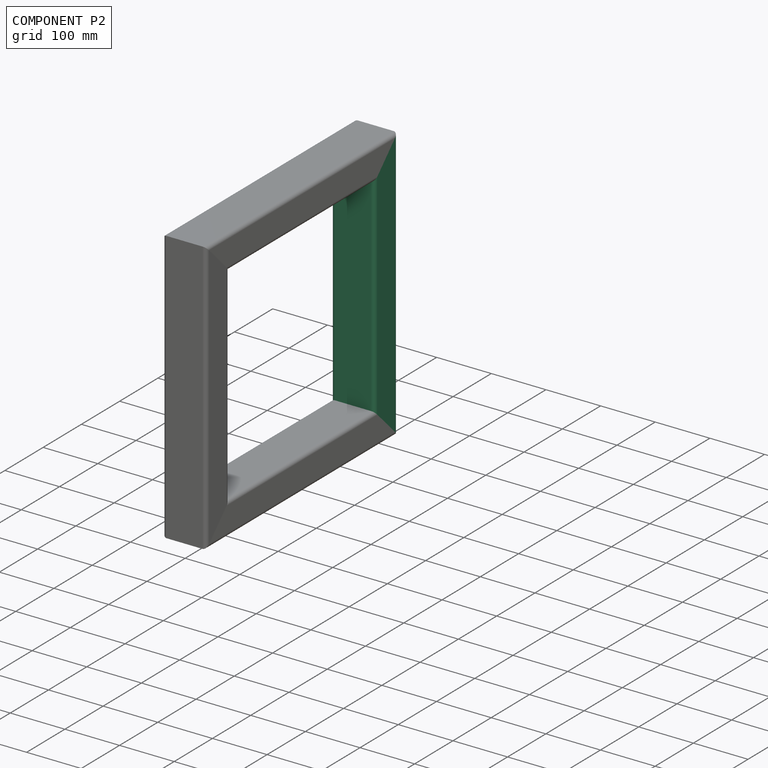
[diagram: component P2 — assembled]
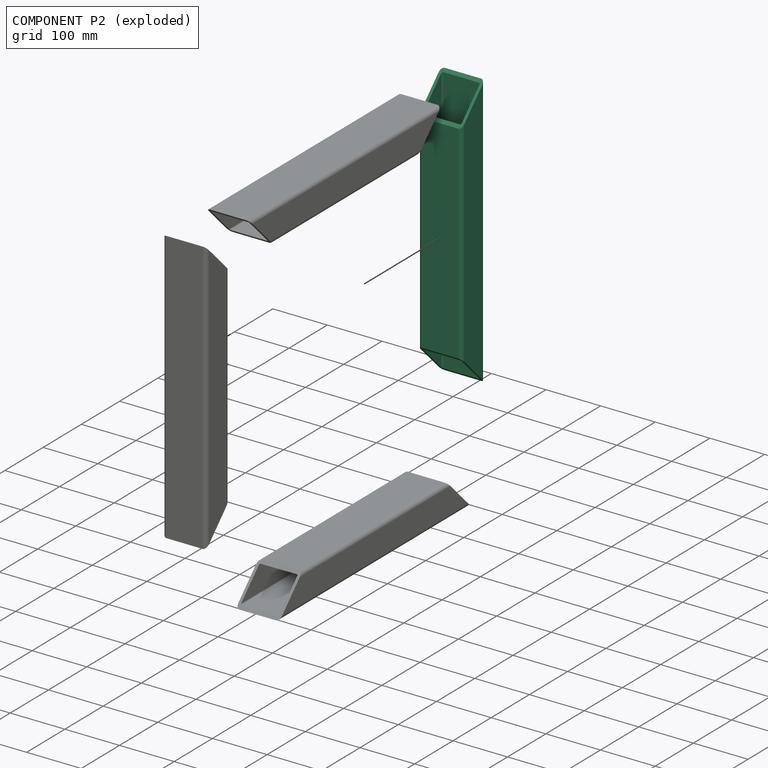
[diagram: component P2 — exploded]
COMPONENT P2 — same part as P0 (CADFS 00210872); its construction recipe is shown at P0.
Held by: PLANAR mate "Planar 6" to P4; PLANAR mate "Planar 5" to P4; FASTENED mate "Fastened 3" to P0; FASTENED mate "Fastened 3" to P0; PLANAR mate "Planar 6" to P4; PLANAR mate "Planar 5" to P4.
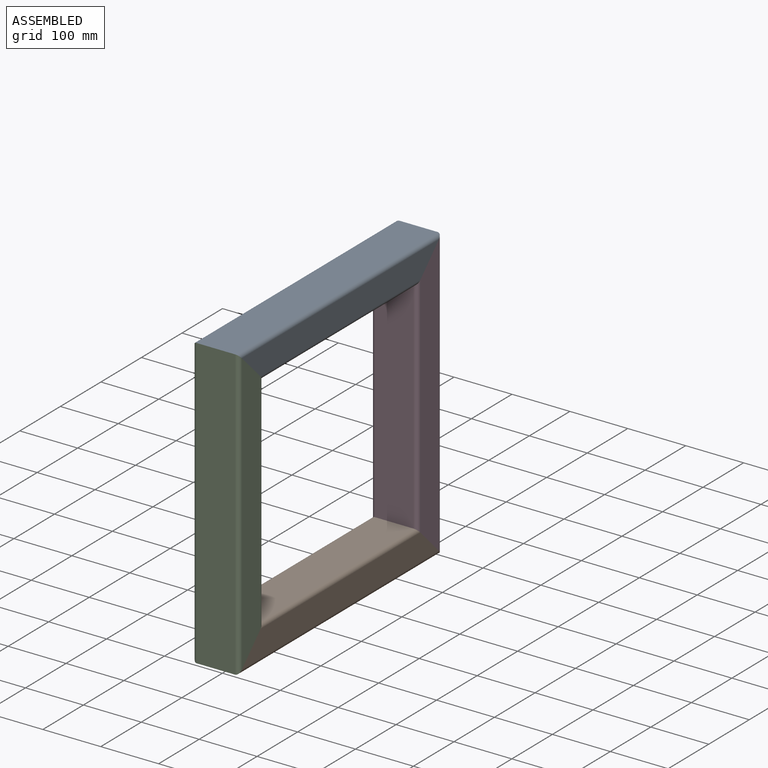
[diagram: subassembly S1 — assembled view]
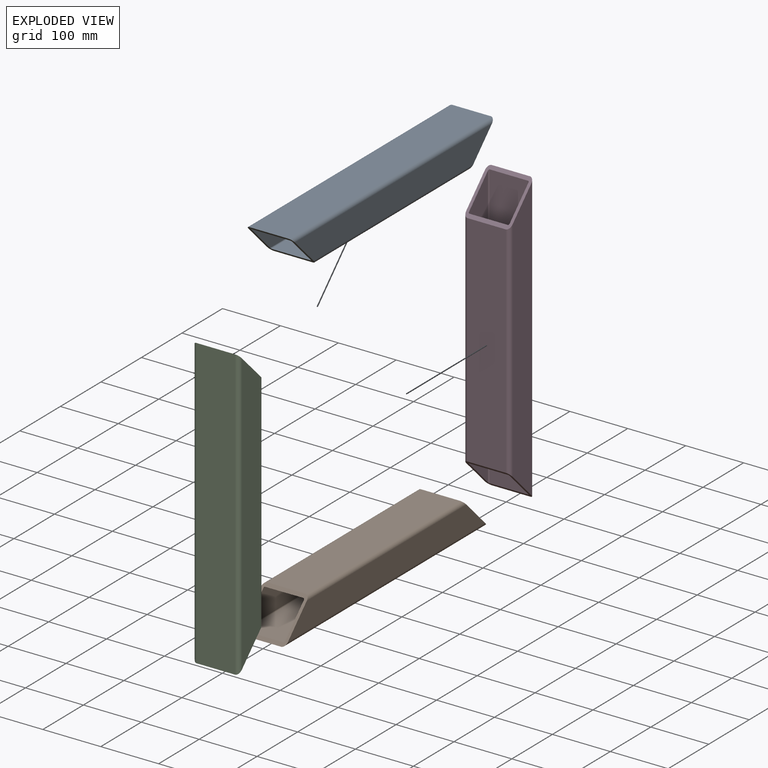
[diagram: subassembly S1 — exploded view]
SUBASSEMBLY S1 TOUR — 4 components, shown here in isolation at its own camera.

INTERNAL MATES
  1. PLANAR "Planar 2": P8 <-> P3, direction (-1.000, 0.000, 0.000) through (357.62, -682.50, 50.20) mm
  2. PLANAR "Planar 6": P9 <-> P1, direction (-1.000, 0.000, 0.000) through (357.62, -241.70, 270.20) mm
  3. FASTENED "Fastened 2": P1 <-> P8, direction (-1.000, 0.000, 0.000) through (397.62, -712.50, 520.20) mm
  4. FASTENED "Fastened 1": P8 <-> P3, direction (-1.000, 0.000, 0.000) through (397.62, -712.50, 20.20) mm
  5. PLANAR "Planar 5": P9 <-> P1, direction (0.000, -0.707, 0.707) through (397.62, -242.50, 490.20) mm
  6. FASTENED "Fastened 3": P9 <-> P3, direction (1.000, 0.000, 0.000) through (397.62, -212.50, 20.20) mm
  7. PLANAR "Planar 3": P1 <-> P8, direction (0.000, -0.707, -0.707) through (397.62, -682.50, 490.20) mm
  8. PLANAR "Planar 1": P3 <-> P8, direction (0.000, -0.707, 0.707) through (397.62, -682.50, 50.20) mm
  9. PLANAR "Planar 4": P8 <-> P1, direction (1.000, 0.000, 0.000) through (437.62, -682.50, 490.20) mm
  10. PLANAR "Planar 1": P3 <-> P8, direction (0.000, -0.707, 0.707) through (397.62, -682.50, 50.20) mm
  11. FASTENED "Fastened 1": P8 <-> P3, direction (-1.000, 0.000, 0.000) through (397.62, -712.50, 20.20) mm
  12. PLANAR "Planar 3": P1 <-> P8, direction (0.000, -0.707, -0.707) through (397.62, -682.50, 490.20) mm
  13. PLANAR "Planar 4": P8 <-> P1, direction (1.000, 0.000, 0.000) through (437.62, -682.50, 490.20) mm
  14. FASTENED "Fastened 3": P9 <-> P3, direction (1.000, 0.000, 0.000) through (397.62, -212.50, 20.20) mm
  15. FASTENED "Fastened 2": P1 <-> P8, direction (-1.000, 0.000, 0.000) through (397.62, -712.50, 520.20) mm
  16. PLANAR "Planar 2": P8 <-> P3, direction (-1.000, 0.000, 0.000) through (357.62, -682.50, 50.20) mm
  17. PLANAR "Planar 5": P9 <-> P1, direction (0.000, -0.707, 0.707) through (397.62, -242.50, 490.20) mm
  18. PLANAR "Planar 6": P9 <-> P1, direction (-1.000, 0.000, 0.000) through (357.62, -241.70, 270.20) mm

ASSEMBLY ORDER (within the subassembly)
  1. P8 — the base component [order verified]
  2. P1 [order verified]
  3. P3 [order verified]
  4. P9 [order verified]
(P9 verified with a relaxed clearance tolerance: the source model stores slight part interference there.)
Order-tag legend:
  [order verified] — this step's position reverses a verified removal order: the component was checked to insert without passing through the ones already placed.
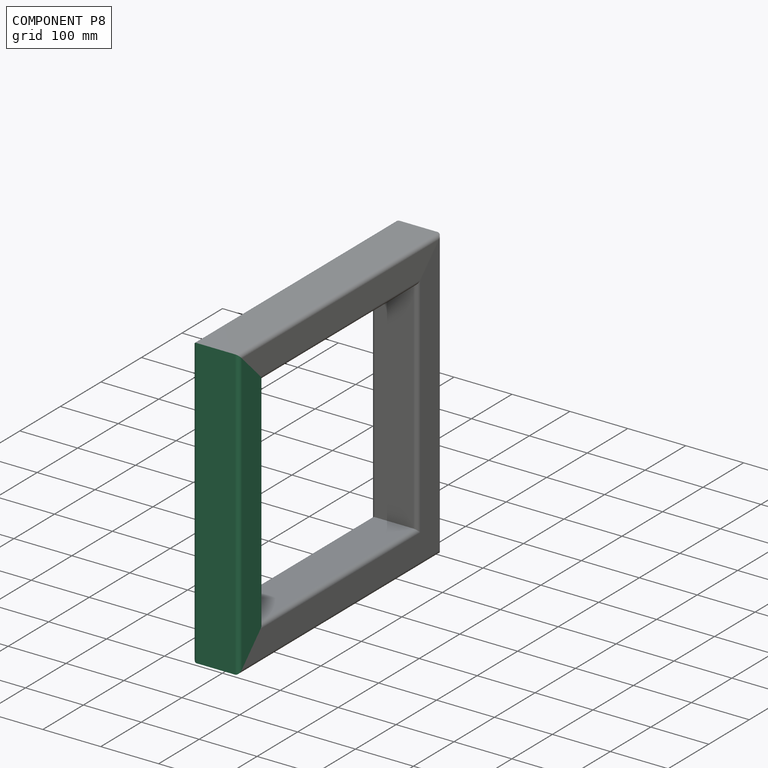
[diagram: component P8 — assembled]
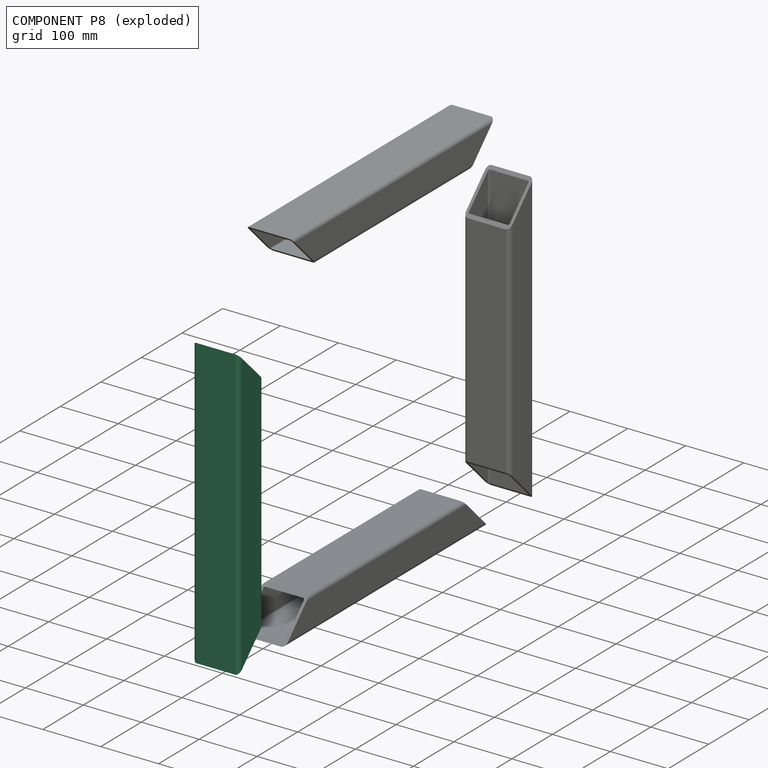
[diagram: component P8 — exploded]
COMPONENT P8 — recipe-attached (CADFS 00210872, mesh-verified: the recipe's output STEP matches this component's geometry to below the mesh-comparison resolution (tessellation chordal tolerance ~0.765 mm)).
Held by: PLANAR mate "Planar 2" to P3; FASTENED mate "Fastened 2" to P1; FASTENED mate "Fastened 1" to P3; PLANAR mate "Planar 3" to P1; PLANAR mate "Planar 1" to P3; PLANAR mate "Planar 4" to P1; PLANAR mate "Planar 1" to P3; FASTENED mate "Fastened 1" to P3; PLANAR mate "Planar 3" to P1; PLANAR mate "Planar 4" to P1; FASTENED mate "Fastened 2" to P1; PLANAR mate "Planar 2" to P3.
Construction recipe (FeatureScript — the CAD program that rebuilds this solid; sketch coordinates are in the units given by the * unit suffixes, e.g. mm):

FeatureScript 1511;
import(path : "onshape/std/geometry.fs", version : "1511.0");
import(path : "onshape/std/common.fs", version : "1511.0");
const mm = millimeter;
const VERTEX = EntityType.VERTEX;
const EDGE = EntityType.EDGE;
const FACE = EntityType.FACE;
const BODY = EntityType.BODY;
function v(x, y){return vector(x, y);}
function OD(order){return orderDisambiguation(order);}
function OSD(set){return originalSetDisambiguation(set);}
function TD(topology){return topologyDisambiguation(topology);}
function TDD(query){return trueDependencyDisambiguation(query);}
function sQuery(a, b, c) {return sketchEntityQuery(a, b, c);}

annotation { "Feature Type Name" : "Feature", "Feature Type Description" : "" }
export const myFeature = defineFeature(function(context is Context, id is Id, definition is map)
    precondition{}
    {
        {
            var Q0;
            Q0=qCreatedBy(makeId("Front.planeOp"),FACE);
            var sketch = newSketch(context, id + "F0", { "sketchPlane" : qUnion([Q0])});
            skLineSegment(sketch, "E0.bottom", {"start": v(33, 30) * mm, "end": v(-33, 30) * mm});
            skLineSegment(sketch, "E0.top", {"start": v(33, -30) * mm, "end": v(-33, -30) * mm});
            skLineSegment(sketch, "E0.left", {"start": v(40, 23) * mm, "end": v(40, -23) * mm});
            skLineSegment(sketch, "E0.right", {"start": v(-40, 23) * mm, "end": v(-40, -23) * mm});
            skPoint(sketch, "E0.middle", {"position": v(0, 0) * mm});
            skLineSegment(sketch, "E1.bottom", {"start": v(33, 25) * mm, "end": v(-33, 25) * mm});
            skLineSegment(sketch, "E1.top", {"start": v(33, -25) * mm, "end": v(-33, -25) * mm});
            skLineSegment(sketch, "E1.left", {"start": v(35, 23) * mm, "end": v(35, -23) * mm});
            skLineSegment(sketch, "E1.right", {"start": v(-35, 23) * mm, "end": v(-35, -23) * mm});
            skPoint(sketch, "E2.visualSharp", {"position": v(-40, 30) * mm});
            skArc(sketch, "E2.filletArc", {"start": v(-33, 30) * mm, "mid": v(-37.95, 27.95) * mm, "end": v(-40, 23) * mm});
            skPoint(sketch, "E3.visualSharp", {"position": v(-40, -30) * mm});
            skArc(sketch, "E3.filletArc", {"start": v(-40, -23) * mm, "mid": v(-37.95, -27.95) * mm, "end": v(-33, -30) * mm});
            skPoint(sketch, "E4.visualSharp", {"position": v(40, -30) * mm});
            skArc(sketch, "E4.filletArc", {"start": v(33, -30) * mm, "mid": v(37.95, -27.95) * mm, "end": v(40, -23) * mm});
            skPoint(sketch, "E5.visualSharp", {"position": v(40, 30) * mm});
            skArc(sketch, "E5.filletArc", {"start": v(40, 23) * mm, "mid": v(37.95, 27.95) * mm, "end": v(33, 30) * mm});
            skPoint(sketch, "E6.visualSharp", {"position": v(-35, -25) * mm});
            skArc(sketch, "E6.filletArc", {"start": v(-35, -23) * mm, "mid": v(-34.41, -24.41) * mm, "end": v(-33, -25) * mm});
            skPoint(sketch, "E7.visualSharp", {"position": v(35, 25) * mm});
            skArc(sketch, "E7.filletArc", {"start": v(35, 23) * mm, "mid": v(34.41, 24.41) * mm, "end": v(33, 25) * mm});
            skPoint(sketch, "E8.visualSharp", {"position": v(35, -25) * mm});
            skArc(sketch, "E8.filletArc", {"start": v(33, -25) * mm, "mid": v(34.41, -24.41) * mm, "end": v(35, -23) * mm});
            skPoint(sketch, "E9.visualSharp", {"position": v(-35, 25) * mm});
            skArc(sketch, "E9.filletArc", {"start": v(-33, 25) * mm, "mid": v(-34.41, 24.41) * mm, "end": v(-35, 23) * mm});
            skSolve(sketch);
        }
        {
            var Q0;
            Q0=makeQuery(id+"F0.imprint","IMPRINT",FACE,{"disambiguationData":[TD([[makeQuery(id+"F0.imprint","IMPRINT",EDGE,{"derivedFrom":sQuery(id+"F0.wireOp",EDGE,"E0.bottom")}),1.0]])]});
            extrude(context, id + "F1", {"entities" : qUnion([Q0]), "endBound" : BoundingType.SYMMETRIC, "depth" : 500 * mm});
        }
        {
            var Q0;
            Q0=makeQuery(id+"F1.opExtrude","SWEPT_FACE",FACE,{"disambiguationData":[OSD([sQuery(id+"F0.wireOp",EDGE,"E0.right")])]});
            var sketch = newSketch(context, id + "F2", { "sketchPlane" : qUnion([Q0])});
            skLineSegment(sketch, "E10.0", {"start": v(-190, -30) * mm, "end": v(-250, -30) * mm});
            skPoint(sketch, "E11.0", {"position": v(-250, 30) * mm});
            skLineSegment(sketch, "E12", {"start": v(-250, 30) * mm, "end": v(-250, -30) * mm});
            skLineSegment(sketch, "E13", {"start": v(-250, 30) * mm, "end": v(-190, -30) * mm});
            skPoint(sketch, "E14.orphan", {"position": v(250, -30) * mm});
            skLineSegment(sketch, "E15.MirrorCS", {"start": v(250, 30) * mm, "end": v(250, -30) * mm});
            skLineSegment(sketch, "E16.MirrorCS", {"start": v(250, 30) * mm, "end": v(190, -30) * mm});
            skLineSegment(sketch, "E17.MirrorCS", {"start": v(190, -30) * mm, "end": v(250, -30) * mm});
            skSolve(sketch);
        }
        {
            var Q0;
            {var subQ0=sQuery(id+"F2.wireOp",EDGE,"E10.0");Q0=makeQuery(id+"F2.imprint","IMPRINT",FACE,{"disambiguationData":[TD([[makeQuery(id+"F2.imprint","IMPRINT",EDGE,{"derivedFrom":subQ0}),-1.0]])]});}
            var Q1;
            {var subQ0=sQuery(id+"F2.wireOp",EDGE,"E12");var subQ1=sQuery(id+"F0.wireOp",EDGE,"E0.right");var subQ2=makeQuery(id+"F1.opExtrude","SWEPT_EDGE",EDGE,{"disambiguationData":[OSD([subQ1,sQuery(id+"F0.wireOp",EDGE,"E2.filletArc")])]});var subQ3=makeQuery(id+"F2.imprint","INTERSECT",VERTEX,{"derivedFrom":[subQ2,subQ0]});Q1=makeQuery(id+"F2.imprint","IMPRINT",FACE,{"disambiguationData":[TD([[makeQuery(id+"F2.imprint","IMPRINT",EDGE,{"disambiguationData":[TD([[subQ3,-1.0]])],"derivedFrom":subQ0}),1.0]])]});}
            var Q2;
            {var subQ0=sQuery(id+"F2.wireOp",EDGE,"E12");var subQ3=sQuery(id+"F2.wireOp",EDGE,"E13");var subQ4=makeQuery(id+"F2.imprint","INTERSECT",VERTEX,{"derivedFrom":[subQ0,subQ3]});Q2=makeQuery(id+"F2.imprint","IMPRINT",FACE,{"disambiguationData":[TD([[makeQuery(id+"F2.imprint","IMPRINT",EDGE,{"disambiguationData":[TD([[subQ4,-1.0]])],"derivedFrom":subQ0}),1.0]])]});}
            var Q3;
            {var subQ0=sQuery(id+"F2.wireOp",EDGE,"E15.MirrorCS");var subQ1=sQuery(id+"F0.wireOp",EDGE,"E0.right");var subQ2=makeQuery(id+"F1.opExtrude","SWEPT_EDGE",EDGE,{"disambiguationData":[OSD([subQ1,sQuery(id+"F0.wireOp",EDGE,"E2.filletArc")])]});var subQ3=makeQuery(id+"F2.imprint","INTERSECT",VERTEX,{"derivedFrom":[subQ2,subQ0]});Q3=makeQuery(id+"F2.imprint","IMPRINT",FACE,{"disambiguationData":[TD([[makeQuery(id+"F2.imprint","IMPRINT",EDGE,{"disambiguationData":[TD([[subQ3,-1.0]])],"derivedFrom":subQ0}),-1.0]])]});}
            var Q4;
            {var subQ3=sQuery(id+"F2.wireOp",EDGE,"E17.MirrorCS");Q4=makeQuery(id+"F2.imprint","IMPRINT",FACE,{"disambiguationData":[TD([[makeQuery(id+"F2.imprint","IMPRINT",EDGE,{"derivedFrom":subQ3}),1.0]])]});}
            var Q5;
            {var subQ0=sQuery(id+"F2.wireOp",EDGE,"E15.MirrorCS");var subQ3=sQuery(id+"F2.wireOp",EDGE,"E16.MirrorCS");var subQ4=makeQuery(id+"F2.imprint","INTERSECT",VERTEX,{"derivedFrom":[subQ0,subQ3]});Q5=makeQuery(id+"F2.imprint","IMPRINT",FACE,{"disambiguationData":[TD([[makeQuery(id+"F2.imprint","IMPRINT",EDGE,{"disambiguationData":[TD([[subQ4,-1.0]])],"derivedFrom":subQ0}),-1.0]])]});}
            extrude(context, id + "F3", {"entities" : qUnion([Q0, Q1, Q2, Q3, Q4, Q5]), "operationType" : NewBodyOperationType.REMOVE, "oppositeDirection" : true, "depth" : 200 * mm});
        }
    });
